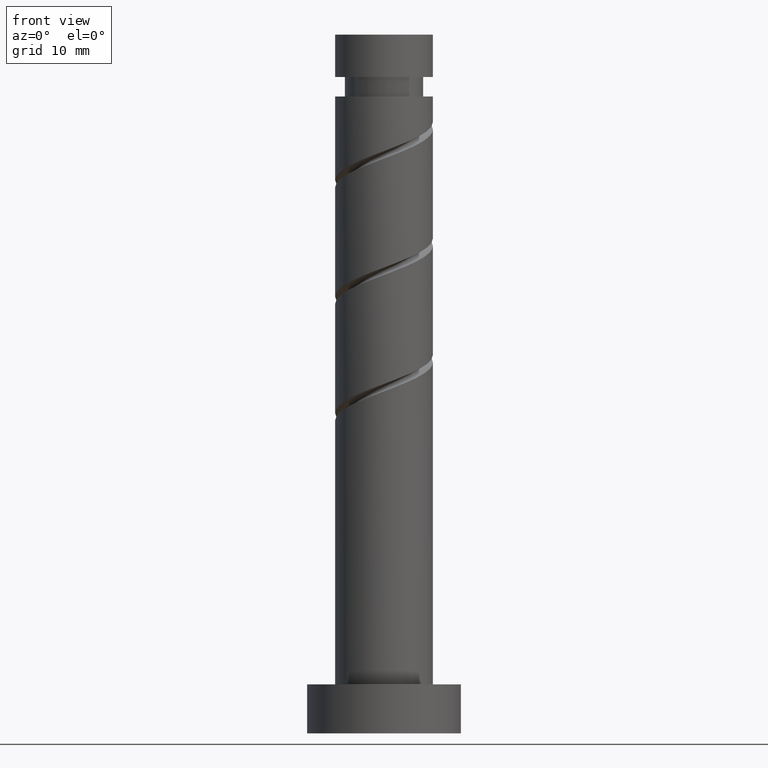
[diagram: clean part render]
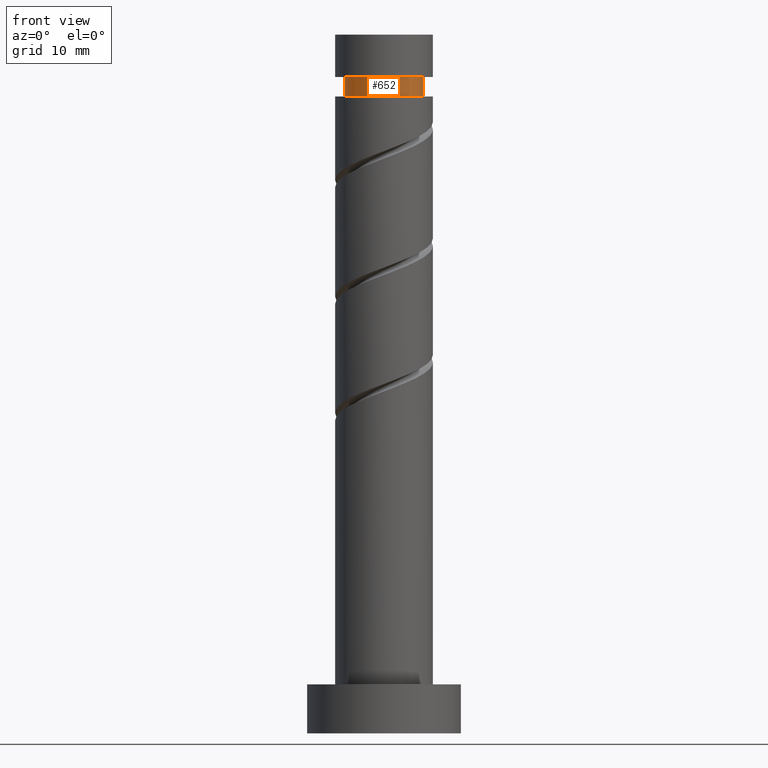
[diagram: same view with one face highlighted and labeled with its STEP entity id]
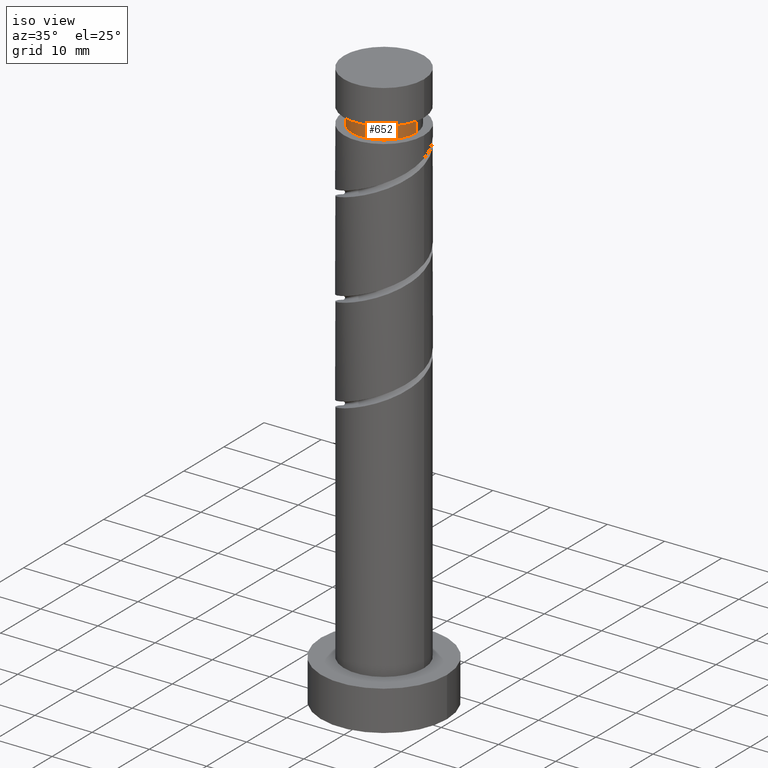
[diagram: same view with one face highlighted and labeled with its STEP entity id]
A machine part, front view. The second image highlights one B-rep face of the part: STEP entity #652.
A second angle (iso view) of the same face is appended — the face is thin or edge-on in the first view.
In plain terms, the highlighted cylindrical surface (partial cylindrical patch) has radius 5.6 mm, axis along (-0, -0, -1).
Its self-contained STEP definition (entity closure, byte-faithful):
#26 = ORIENTED_EDGE ( 'NONE', *, *, #661, .F. ) ;
#61 = DIRECTION ( 'NONE',  ( -0.000000000000000000, -0.000000000000000000, -1.000000000000000000 ) ) ;
#76 = CYLINDRICAL_SURFACE ( 'NONE', #1326, 5.600000000000002309 ) ;
#99 = AXIS2_PLACEMENT_3D ( 'NONE', #1474, #793, #578 ) ;
#168 = VERTEX_POINT ( 'NONE', #1333 ) ;
#175 = CARTESIAN_POINT ( 'NONE',  ( 0.000000000000000000, 0.000000000000000000, 93.94974909860164303 ) ) ;
#196 = CIRCLE ( 'NONE', #99, 5.600000000000002309 ) ;
#232 = ORIENTED_EDGE ( 'NONE', *, *, #840, .F. ) ;
#387 = VERTEX_POINT ( 'NONE', #675 ) ;
#393 = CARTESIAN_POINT ( 'NONE',  ( -5.600000000000002309, 0.000000000000000000, 93.94974909860164303 ) ) ;
#404 = DIRECTION ( 'NONE',  ( -0.000000000000000000, -0.000000000000000000, -1.000000000000000000 ) ) ;
#491 = CARTESIAN_POINT ( 'NONE',  ( 5.600000000000002309, 6.858022075225180524E-16, 91.14974909860164587 ) ) ;
#509 = FACE_OUTER_BOUND ( 'NONE', #1294, .T. ) ;
#515 = CARTESIAN_POINT ( 'NONE',  ( 0.000000000000000000, 0.000000000000000000, 0.000000000000000000 ) ) ;
#520 = LINE ( 'NONE', #1424, #1417 ) ;
#578 = DIRECTION ( 'NONE',  ( -1.000000000000000000, 0.000000000000000000, 0.000000000000000000 ) ) ;
#612 = ORIENTED_EDGE ( 'NONE', *, *, #1245, .T. ) ;
#652 = ADVANCED_FACE ( 'NONE', ( #509 ), #76, .T. ) ;
#661 = EDGE_CURVE ( 'NONE', #387, #1014, #992, .T. ) ;
#675 = CARTESIAN_POINT ( 'NONE',  ( 5.600000000000002309, 6.858022075225180524E-16, 93.94974909860164303 ) ) ;
#690 = VECTOR ( 'NONE', #758, 1000.000000000000000 ) ;
#714 = CIRCLE ( 'NONE', #906, 5.600000000000002309 ) ;
#758 = DIRECTION ( 'NONE',  ( -0.000000000000000000, -0.000000000000000000, -1.000000000000000000 ) ) ;
#793 = DIRECTION ( 'NONE',  ( -0.000000000000000000, -0.000000000000000000, -1.000000000000000000 ) ) ;
#840 = EDGE_CURVE ( 'NONE', #1014, #168, #196, .T. ) ;
#869 = DIRECTION ( 'NONE',  ( -1.000000000000000000, 0.000000000000000000, 0.000000000000000000 ) ) ;
#887 = DIRECTION ( 'NONE',  ( -1.000000000000000000, 0.000000000000000000, 0.000000000000000000 ) ) ;
#906 = AXIS2_PLACEMENT_3D ( 'NONE', #175, #1329, #887 ) ;
#911 = VERTEX_POINT ( 'NONE', #393 ) ;
#941 = ORIENTED_EDGE ( 'NONE', *, *, #1209, .T. ) ;
#988 = CARTESIAN_POINT ( 'NONE',  ( 5.600000000000002309, 6.858022075225180524E-16, 0.000000000000000000 ) ) ;
#992 = LINE ( 'NONE', #988, #690 ) ;
#1014 = VERTEX_POINT ( 'NONE', #491 ) ;
#1209 = EDGE_CURVE ( 'NONE', #387, #911, #714, .T. ) ;
#1245 = EDGE_CURVE ( 'NONE', #911, #168, #520, .T. ) ;
#1294 = EDGE_LOOP ( 'NONE', ( #26, #941, #612, #232 ) ) ;
#1326 = AXIS2_PLACEMENT_3D ( 'NONE', #515, #61, #869 ) ;
#1329 = DIRECTION ( 'NONE',  ( -0.000000000000000000, -0.000000000000000000, -1.000000000000000000 ) ) ;
#1333 = CARTESIAN_POINT ( 'NONE',  ( -5.600000000000002309, 0.000000000000000000, 91.14974909860164587 ) ) ;
#1417 = VECTOR ( 'NONE', #404, 1000.000000000000000 ) ;
#1424 = CARTESIAN_POINT ( 'NONE',  ( -5.600000000000002309, 0.000000000000000000, 0.000000000000000000 ) ) ;
#1474 = CARTESIAN_POINT ( 'NONE',  ( 0.000000000000000000, 0.000000000000000000, 91.14974909860164587 ) ) ;